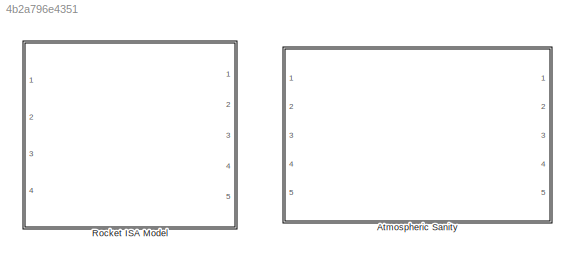
MODEL slx_4b2a796e4351
KIND library
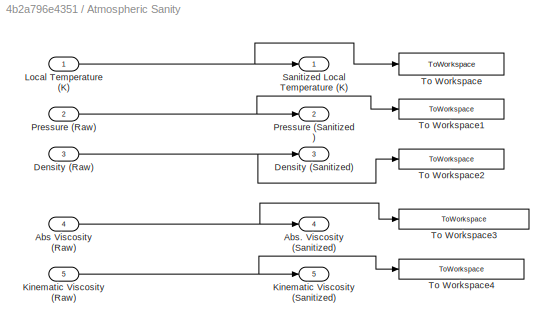
BLOCK [SubSystem] Atmospheric Sanity
  Ports = [5, 5]
  RequestExecContextInheritance = off
BLOCK [Inport] Atmospheric Sanity/Abs Viscosity (Raw)
  IconDisplay = Port number
  Port = 4
BLOCK [Outport] Atmospheric Sanity/Abs. Viscosity (Sanitized)
  IconDisplay = Port number
  Port = 4
BLOCK [Inport] Atmospheric Sanity/Density (Raw)
  IconDisplay = Port number
  Port = 3
BLOCK [Outport] Atmospheric Sanity/Density (Sanitized)
  IconDisplay = Port number
  Port = 3
BLOCK [Inport] Atmospheric Sanity/Kinematic Viscosity (Raw)
  IconDisplay = Port number
  Port = 5
BLOCK [Outport] Atmospheric Sanity/Kinematic Viscosity (Sanitized)
  IconDisplay = Port number
  Port = 5
BLOCK [Inport] Atmospheric Sanity/Local Temperature (K)
  IconDisplay = Port number
BLOCK [Inport] Atmospheric Sanity/Pressure (Raw)
  IconDisplay = Port number
  Port = 2
BLOCK [Outport] Atmospheric Sanity/Pressure (Sanitized)
  IconDisplay = Port number
  Port = 2
BLOCK [Outport] Atmospheric Sanity/Sanitized Local Temperature (K)
  IconDisplay = Port number
BLOCK [ToWorkspace] Atmospheric Sanity/To Workspace
  FixptAsFi = on
  MaxDataPoints = inf
  Ports = [1]
  SampleTime = -1
  Save2DSignal = 3-D array (concatenate along third dimension)
  VariableName = local_temperature
BLOCK [ToWorkspace] Atmospheric Sanity/To Workspace1
  FixptAsFi = on
  MaxDataPoints = inf
  Ports = [1]
  SampleTime = -1
  Save2DSignal = 3-D array (concatenate along third dimension)
  VariableName = local_pressure
BLOCK [ToWorkspace] Atmospheric Sanity/To Workspace2
  FixptAsFi = on
  MaxDataPoints = inf
  Ports = [1]
  SampleTime = -1
  Save2DSignal = 3-D array (concatenate along third dimension)
  VariableName = local_density
BLOCK [ToWorkspace] Atmospheric Sanity/To Workspace3
  FixptAsFi = on
  MaxDataPoints = inf
  Ports = [1]
  SampleTime = -1
  Save2DSignal = 3-D array (concatenate along third dimension)
  VariableName = local_absolute_viscosity
BLOCK [ToWorkspace] Atmospheric Sanity/To Workspace4
  FixptAsFi = on
  MaxDataPoints = inf
  Ports = [1]
  SampleTime = -1
  Save2DSignal = 3-D array (concatenate along third dimension)
  VariableName = local_kinematic_viscosity
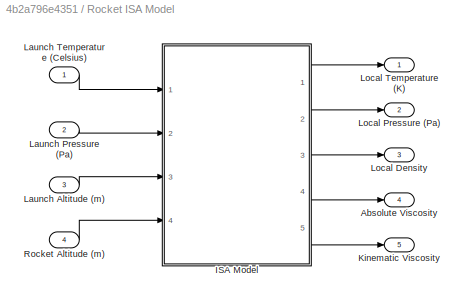
BLOCK [SubSystem] Rocket ISA Model
  Ports = [4, 5]
  RequestExecContextInheritance = off
  TreatAsAtomicUnit = on
BLOCK [Outport] Rocket ISA Model/Absolute Viscosity
  IconDisplay = Port number
  Port = 4
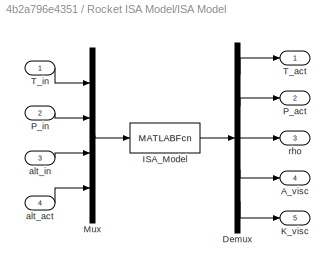
BLOCK [SubSystem] Rocket ISA Model/ISA Model
  Ports = [4, 5]
  RequestExecContextInheritance = off
BLOCK [Outport] Rocket ISA Model/ISA Model/A_visc
  IconDisplay = Port number
  Port = 4
BLOCK [Demux] Rocket ISA Model/ISA Model/Demux
  DisplayOption = bar
  Outputs = 5
  Ports = [1, 5]
BLOCK [MATLABFcn] Rocket ISA Model/ISA Model/ISA_Model
  MATLABFcn = ISAModel
  Ports = [1, 1]
BLOCK [Outport] Rocket ISA Model/ISA Model/K_visc
  IconDisplay = Port number
  Port = 5
BLOCK [Mux] Rocket ISA Model/ISA Model/Mux
  DisplayOption = bar
  Ports = [4, 1]
BLOCK [Outport] Rocket ISA Model/ISA Model/P_act
  IconDisplay = Port number
  Port = 2
BLOCK [Inport] Rocket ISA Model/ISA Model/P_in
  IconDisplay = Port number
  Port = 2
BLOCK [Outport] Rocket ISA Model/ISA Model/T_act
  IconDisplay = Port number
BLOCK [Inport] Rocket ISA Model/ISA Model/T_in
  IconDisplay = Port number
BLOCK [Inport] Rocket ISA Model/ISA Model/alt_act
  IconDisplay = Port number
  Port = 4
BLOCK [Inport] Rocket ISA Model/ISA Model/alt_in
  IconDisplay = Port number
  Port = 3
BLOCK [Outport] Rocket ISA Model/ISA Model/rho
  IconDisplay = Port number
  Port = 3
BLOCK [Outport] Rocket ISA Model/Kinematic Viscosity
  IconDisplay = Port number
  Port = 5
BLOCK [Inport] Rocket ISA Model/Launch Altitude (m)
  IconDisplay = Port number
  Port = 3
BLOCK [Inport] Rocket ISA Model/Launch Pressure (Pa)
  IconDisplay = Port number
  Port = 2
BLOCK [Inport] Rocket ISA Model/Launch Temperature (Celsius)
  IconDisplay = Port number
BLOCK [Outport] Rocket ISA Model/Local Density
  IconDisplay = Port number
  Port = 3
BLOCK [Outport] Rocket ISA Model/Local Pressure (Pa)
  IconDisplay = Port number
  Port = 2
BLOCK [Outport] Rocket ISA Model/Local Temperature (K)
  IconDisplay = Port number
BLOCK [Inport] Rocket ISA Model/Rocket Altitude (m)
  IconDisplay = Port number
  Port = 4
NET Atmospheric Sanity/Abs Viscosity (Raw):1 -> Atmospheric Sanity/Abs. Viscosity (Sanitized):1, Atmospheric Sanity/To Workspace3:1
NET Atmospheric Sanity/Density (Raw):1 -> Atmospheric Sanity/Density (Sanitized):1, Atmospheric Sanity/To Workspace2:1
NET Atmospheric Sanity/Kinematic Viscosity (Raw):1 -> Atmospheric Sanity/Kinematic Viscosity (Sanitized):1, Atmospheric Sanity/To Workspace4:1
NET Atmospheric Sanity/Local Temperature (K):1 -> Atmospheric Sanity/Sanitized Local Temperature (K):1, Atmospheric Sanity/To Workspace:1
NET Atmospheric Sanity/Pressure (Raw):1 -> Atmospheric Sanity/Pressure (Sanitized):1, Atmospheric Sanity/To Workspace1:1
LINE Rocket ISA Model/ISA Model/Demux:1 -> Rocket ISA Model/ISA Model/T_act:1
LINE Rocket ISA Model/ISA Model/Demux:2 -> Rocket ISA Model/ISA Model/P_act:1
LINE Rocket ISA Model/ISA Model/Demux:3 -> Rocket ISA Model/ISA Model/rho:1
LINE Rocket ISA Model/ISA Model/Demux:4 -> Rocket ISA Model/ISA Model/A_visc:1
LINE Rocket ISA Model/ISA Model/Demux:5 -> Rocket ISA Model/ISA Model/K_visc:1
LINE Rocket ISA Model/ISA Model/ISA_Model:1 -> Rocket ISA Model/ISA Model/Demux:1
LINE Rocket ISA Model/ISA Model/Mux:1 -> Rocket ISA Model/ISA Model/ISA_Model:1
LINE Rocket ISA Model/ISA Model/P_in:1 -> Rocket ISA Model/ISA Model/Mux:2
LINE Rocket ISA Model/ISA Model/T_in:1 -> Rocket ISA Model/ISA Model/Mux:1
LINE Rocket ISA Model/ISA Model/alt_act:1 -> Rocket ISA Model/ISA Model/Mux:4
LINE Rocket ISA Model/ISA Model/alt_in:1 -> Rocket ISA Model/ISA Model/Mux:3
LINE Rocket ISA Model/ISA Model:1 -> Rocket ISA Model/Local Temperature (K):1
LINE Rocket ISA Model/ISA Model:2 -> Rocket ISA Model/Local Pressure (Pa):1
LINE Rocket ISA Model/ISA Model:3 -> Rocket ISA Model/Local Density:1
LINE Rocket ISA Model/ISA Model:4 -> Rocket ISA Model/Absolute Viscosity:1
LINE Rocket ISA Model/ISA Model:5 -> Rocket ISA Model/Kinematic Viscosity:1
LINE Rocket ISA Model/Launch Altitude (m):1 -> Rocket ISA Model/ISA Model:3
LINE Rocket ISA Model/Launch Pressure (Pa):1 -> Rocket ISA Model/ISA Model:2
LINE Rocket ISA Model/Launch Temperature (Celsius):1 -> Rocket ISA Model/ISA Model:1
LINE Rocket ISA Model/Rocket Altitude (m):1 -> Rocket ISA Model/ISA Model:4
note: NET lines group one-source signal fan-out (src -> all destinations, sorted); 1:1 wires keep LINE
